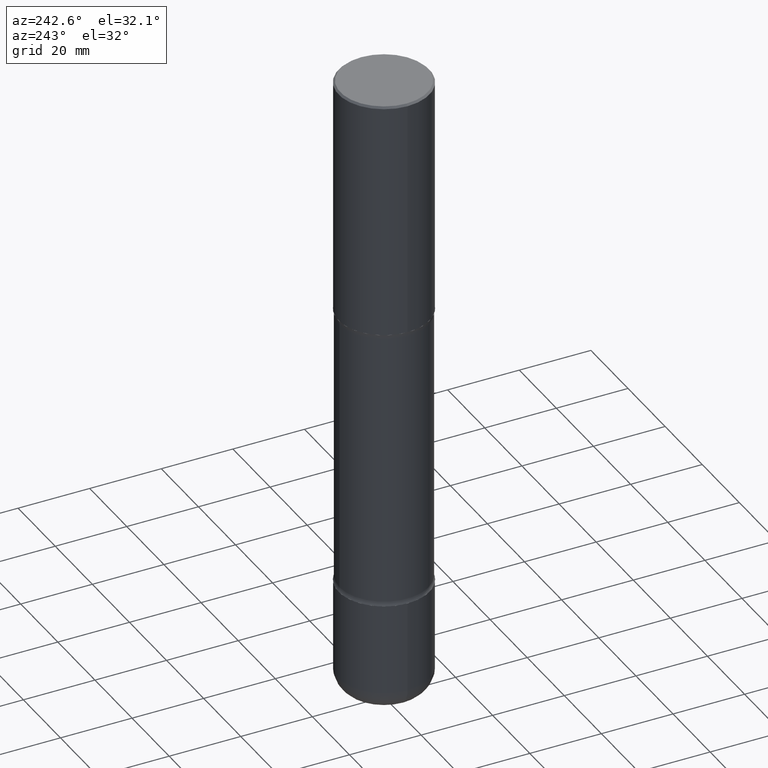
[diagram: clean part render]
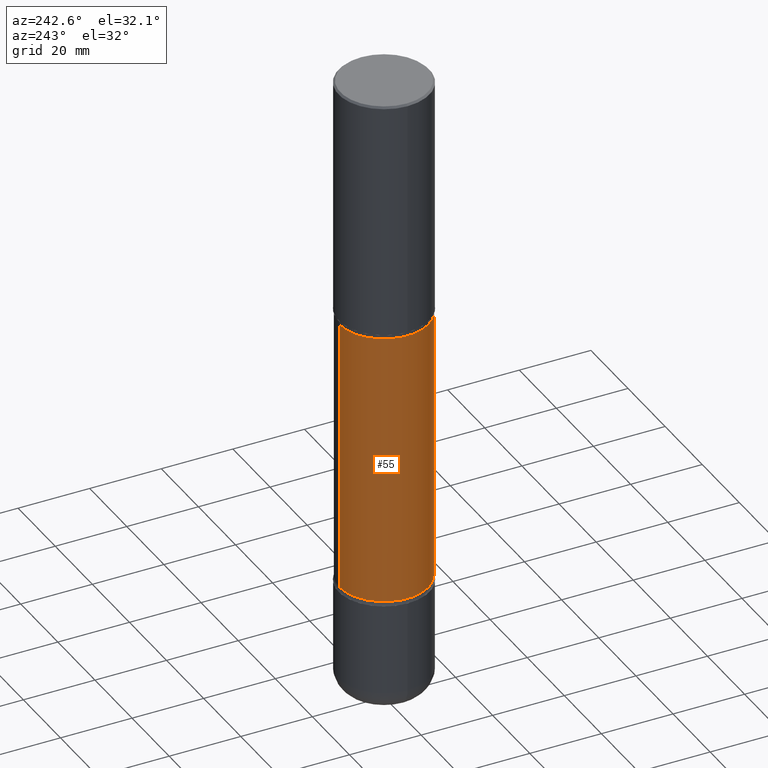
[diagram: same view with one face highlighted and labeled with its STEP entity id]
A machine part, auxiliary view. The second image highlights one B-rep face of the part: STEP entity #55.
In plain terms, the highlighted cylindrical surface (partial cylindrical patch) has radius 12.446 mm, axis along (0, -0, -1).
Its self-contained STEP definition (entity closure, byte-faithful):
#3 = AXIS2_PLACEMENT_3D ( 'NONE', #88, #348, #85 ) ;
#8 = EDGE_CURVE ( 'NONE', #248, #485, #484, .T. ) ;
#10 = AXIS2_PLACEMENT_3D ( 'NONE', #498, #491, #451 ) ;
#19 = DIRECTION ( 'NONE',  ( 6.982962677686266711E-15, 1.000000000000000000, -4.460159989655937807E-15 ) ) ;
#55 = ADVANCED_FACE ( 'NONE', ( #56 ), #417, .T. ) ;
#56 = FACE_OUTER_BOUND ( 'NONE', #380, .T. ) ;
#75 = EDGE_CURVE ( 'NONE', #201, #295, #238, .T. ) ;
#83 = CARTESIAN_POINT ( 'NONE',  ( 3.421651712066335533E-15, 0.4899999999999906097, -2.673989794855666347 ) ) ;
#84 = ORIENTED_EDGE ( 'NONE', *, *, #75, .T. ) ;
#85 = DIRECTION ( 'NONE',  ( 6.982962677686266711E-15, 1.000000000000000000, -4.460159989655937807E-15 ) ) ;
#88 = CARTESIAN_POINT ( 'NONE',  ( 1.393790442618711164E-28, -1.991032405072724823E-14, -5.701010205144338094 ) ) ;
#108 = ORIENTED_EDGE ( 'NONE', *, *, #8, .F. ) ;
#122 = EDGE_CURVE ( 'NONE', #248, #201, #495, .T. ) ;
#196 = DIRECTION ( 'NONE',  ( 2.521774376508615199E-29, -3.382207419096575054E-15, -1.000000000000000000 ) ) ;
#201 = VERTEX_POINT ( 'NONE', #83 ) ;
#238 = LINE ( 'NONE', #276, #384 ) ;
#248 = VERTEX_POINT ( 'NONE', #507 ) ;
#267 = ORIENTED_EDGE ( 'NONE', *, *, #122, .T. ) ;
#270 = DIRECTION ( 'NONE',  ( 2.521774376508615199E-29, -3.382207419096575054E-15, -1.000000000000000000 ) ) ;
#275 = CARTESIAN_POINT ( 'NONE',  ( -3.361644018907879661E-15, -0.4900000000000245270, -6.999999999999998224 ) ) ;
#276 = CARTESIAN_POINT ( 'NONE',  ( 3.421651712066444395E-15, 0.4899999999999758993, -7.000000000000002665 ) ) ;
#295 = VERTEX_POINT ( 'NONE', #499 ) ;
#305 = AXIS2_PLACEMENT_3D ( 'NONE', #454, #409, #19 ) ;
#348 = DIRECTION ( 'NONE',  ( 2.521774376508615199E-29, -3.382207419096575054E-15, -1.000000000000000000 ) ) ;
#365 = VECTOR ( 'NONE', #270, 39.37007874015748143 ) ;
#380 = EDGE_LOOP ( 'NONE', ( #108, #267, #84, #560 ) ) ;
#384 = VECTOR ( 'NONE', #196, 39.37007874015748143 ) ;
#388 = CARTESIAN_POINT ( 'NONE',  ( -3.395946508896770262E-15, -0.4900000000000201972, -5.701010205144335430 ) ) ;
#409 = DIRECTION ( 'NONE',  ( 2.521774376508615199E-29, -3.382207419096575054E-15, -1.000000000000000000 ) ) ;
#417 = CYLINDRICAL_SURFACE ( 'NONE', #305, 0.4900000000000002132 ) ;
#451 = DIRECTION ( 'NONE',  ( 6.982962677686265922E-15, 1.000000000000000000, -3.345119992241952764E-15 ) ) ;
#454 = CARTESIAN_POINT ( 'NONE',  ( 1.721366360620030576E-28, -2.430377697221880819E-14, -7.000000000000000888 ) ) ;
#484 = LINE ( 'NONE', #275, #365 ) ;
#485 = VERTEX_POINT ( 'NONE', #388 ) ;
#491 = DIRECTION ( 'NONE',  ( 2.521774376508615199E-29, -3.382207419096575054E-15, -1.000000000000000000 ) ) ;
#495 = CIRCLE ( 'NONE', #10, 0.4900000000000003242 ) ;
#496 = CIRCLE ( 'NONE', #3, 0.4900000000000002132 ) ;
#498 = CARTESIAN_POINT ( 'NONE',  ( 6.304441918352541244E-29, -9.672313161292138193E-15, -2.673989794855665014 ) ) ;
#499 = CARTESIAN_POINT ( 'NONE',  ( 3.421651712066411263E-15, 0.4899999999999802847, -5.701010205144339871 ) ) ;
#507 = CARTESIAN_POINT ( 'NONE',  ( -3.395946508896849543E-15, -0.4900000000000100941, -2.673989794855663238 ) ) ;
#517 = EDGE_CURVE ( 'NONE', #485, #295, #496, .T. ) ;
#560 = ORIENTED_EDGE ( 'NONE', *, *, #517, .F. ) ;